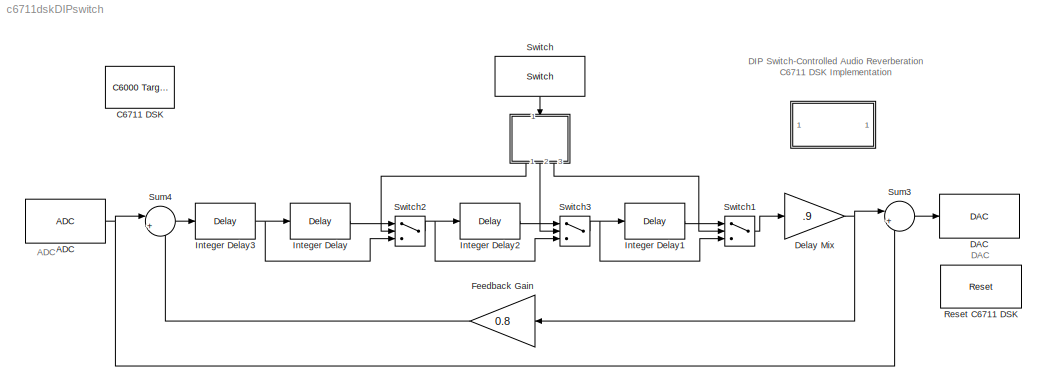
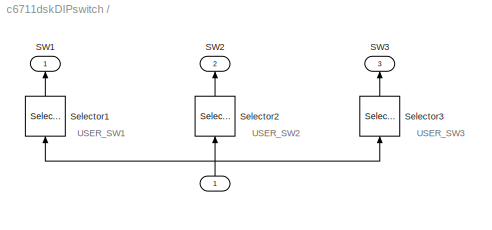
MODEL c6711dskDIPswitch
KIND model
BLOCK [SubSystem]  
  MaskDisplay = disp('Info')
  MaskIconFrame = on
  MaskIconOpaque = on
  MaskIconRotate = none
  MaskIconUnits = autoscale
  MinAlgLoopOccurrences = off
  Ports = []
  TreatAsAtomicUnit = off
BLOCK [SubSystem]   
  MinAlgLoopOccurrences = off
  Ports = [1, 3]
  TreatAsAtomicUnit = off
BLOCK [Inport]   /   
  IconDisplay = Port number
BLOCK [Outport]   /SW1
  BusOutputAsStruct = off
  IconDisplay = Port number
BLOCK [Outport]   /SW2
  BusOutputAsStruct = off
  IconDisplay = Port number
  Port = 2
BLOCK [Outport]   /SW3
  BusOutputAsStruct = off
  IconDisplay = Port number
  Port = 3
BLOCK [Selector]   /Selector1
  InputPortWidth = 3
  Ports = [1, 1]
BLOCK [Selector]   /Selector2
  Elements = 2
  InputPortWidth = 3
  Ports = [1, 1]
BLOCK [Selector]   /Selector3
  Elements = 3
  InputPortWidth = 3
  Ports = [1, 1]
BLOCK [Reference] ADC  REF=c6711dsklib/ADC
  ADCsource = Mic In
  FrameSize = 64
  MicGain = on
  OutputDataType = Double
  Ports = [0, 1]
  Scaling = Normalize
  SourceBlock = c6711dsklib/ADC
  SourceGain = 4.5
  SourceType = C6711DSK ADC
BLOCK [Reference] C6711 DSK  REF=c6000tgtpreflib/C6000 Target\nPreferences
  Ports = []
  ShowPortLabels = on
  SourceBlock = c6000tgtpreflib/C6000 Target\nPreferences
  SourceType = C6000 Target Preferences
  UserData = DataTag0
  UserDataPersistent = on
BLOCK [Reference] DAC  REF=c6711dsklib/DAC
  DacAtten = 0.0
  OverflowMode = Saturate
  Ports = [1]
  Scaling = Normalize
  SourceBlock = c6711dsklib/DAC
  SourceType = C6711DSK DAC
BLOCK [Gain] Delay Mix
  Gain = .9
BLOCK [Gain] Feedback Gain
  Gain = 0.8
BLOCK [Reference] Integer Delay  REF=dspsigops/Delay
  Ports = [1, 1]
  SourceBlock = dspsigops/Delay
  SourceType = Integer Delay
  delay = 450
  ic = 0
  reset_popup = None
BLOCK [Reference] Integer Delay1  REF=dspsigops/Delay
  Ports = [1, 1]
  SourceBlock = dspsigops/Delay
  SourceType = Integer Delay
  delay = 450
  ic = 0
  reset_popup = None
BLOCK [Reference] Integer Delay2  REF=dspsigops/Delay
  Ports = [1, 1]
  SourceBlock = dspsigops/Delay
  SourceType = Integer Delay
  delay = 450
  ic = 0
  reset_popup = None
BLOCK [Reference] Integer Delay3  REF=dspsigops/Delay
  Ports = [1, 1]
  SourceBlock = dspsigops/Delay
  SourceType = Integer Delay
  delay = 450
  ic = 0
  reset_popup = None
BLOCK [Reference] Reset C6711 DSK  REF=c6711dsklib/Reset
  Ports = []
  ShowPortLabels = on
  SourceBlock = c6711dsklib/Reset
  SourceType = C6711DSK RESET
BLOCK [Sum] Sum3
  IconShape = round
  Inputs = |++
  Ports = [2, 1]
BLOCK [Sum] Sum4
  IconShape = round
  Inputs = |++
  Ports = [2, 1]
BLOCK [Reference] Switch  REF=c6711dsklib/Switch
  Ports = [0, 1]
  SourceBlock = c6711dsklib/Switch
  SourceType = C6711 DSK DIP Switch
  Ts = 64/8000
  dType = Boolean
  sw1 = off
  sw2 = off
  sw3 = off
BLOCK [Switch] Switch1
  SaturateOnIntegerOverflow = off
  Threshold = 1
  ZeroCross = off
BLOCK [Switch] Switch2
  SaturateOnIntegerOverflow = off
  Threshold = 1
  ZeroCross = off
BLOCK [Switch] Switch3
  SaturateOnIntegerOverflow = off
  Threshold = 1
  ZeroCross = off
ANNOTATION (root): ADC
ANNOTATION (root): DAC
ANNOTATION (root): DIP Switch-Controlled Audio Reverberation\nC6711 DSK Implementation
ANNOTATION  : DIP Switch-Controlled Audio Reverberation\nC6711 DSK Implementation\n\nThis simulation of audio reverberation demonstrates the use of the C6711 DSK DIP Switch block.\nThis block reads the status of user-controlled DIP switches (USER_SW1, USER_SW2,\nUSER_SW3) on the c6711 DSK board. Each DIP switch controls a corresponding delay block.
ANNOTATION   : USER_SW1
ANNOTATION   : USER_SW2
ANNOTATION   : USER_SW3
NET   /   :1 ->   /Selector1:1,   /Selector2:1,   /Selector3:1
LINE   /Selector1:1 ->   /SW1:1
LINE   /Selector2:1 ->   /SW2:1
LINE   /Selector3:1 ->   /SW3:1
LINE   :1 -> Switch2:2
LINE   :2 -> Switch3:2
LINE   :3 -> Switch1:2
NET ADC:1 -> Sum3:2, Sum4:1
NET Delay Mix:1 -> Feedback Gain:1, Sum3:1
LINE Feedback Gain:1 -> Sum4:2
LINE Integer Delay1:1 -> Switch1:1
LINE Integer Delay2:1 -> Switch3:1
NET Integer Delay3:1 -> Integer Delay:1, Switch2:3
LINE Integer Delay:1 -> Switch2:1
LINE Sum3:1 -> DAC:1
LINE Sum4:1 -> Integer Delay3:1
LINE Switch1:1 -> Delay Mix:1
NET Switch2:1 -> Integer Delay2:1, Switch3:3
NET Switch3:1 -> Integer Delay1:1, Switch1:3
LINE Switch:1 ->   :1
note: NET lines group one-source signal fan-out (src -> all destinations, sorted); 1:1 wires keep LINE
